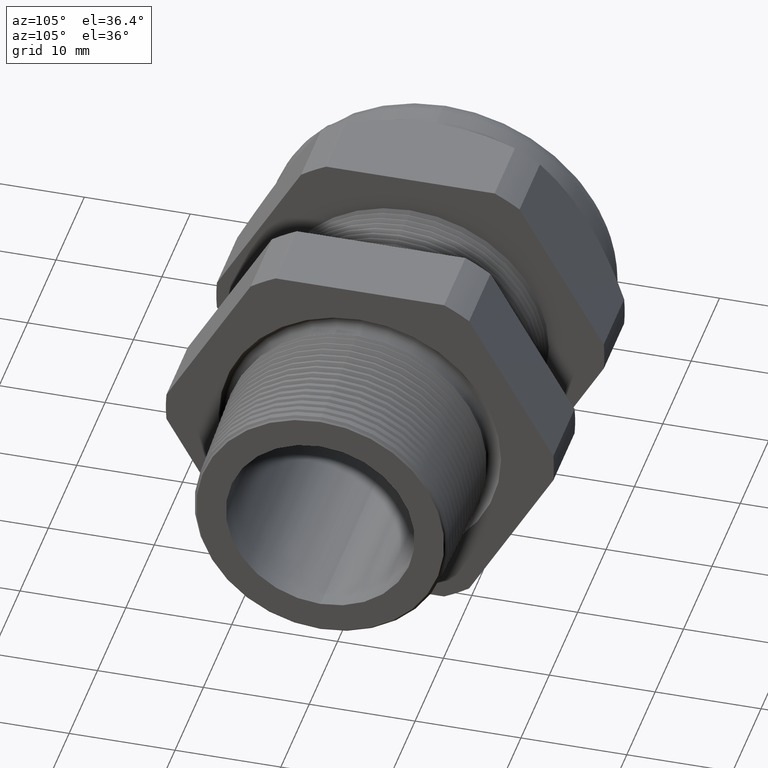
[diagram: clean part render]
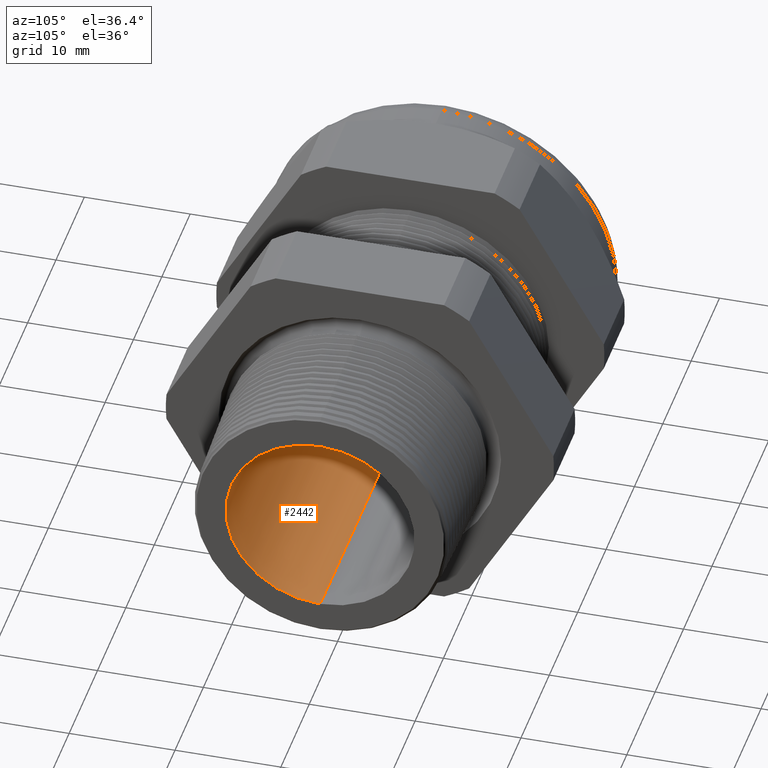
[diagram: same view with one face highlighted and labeled with its STEP entity id]
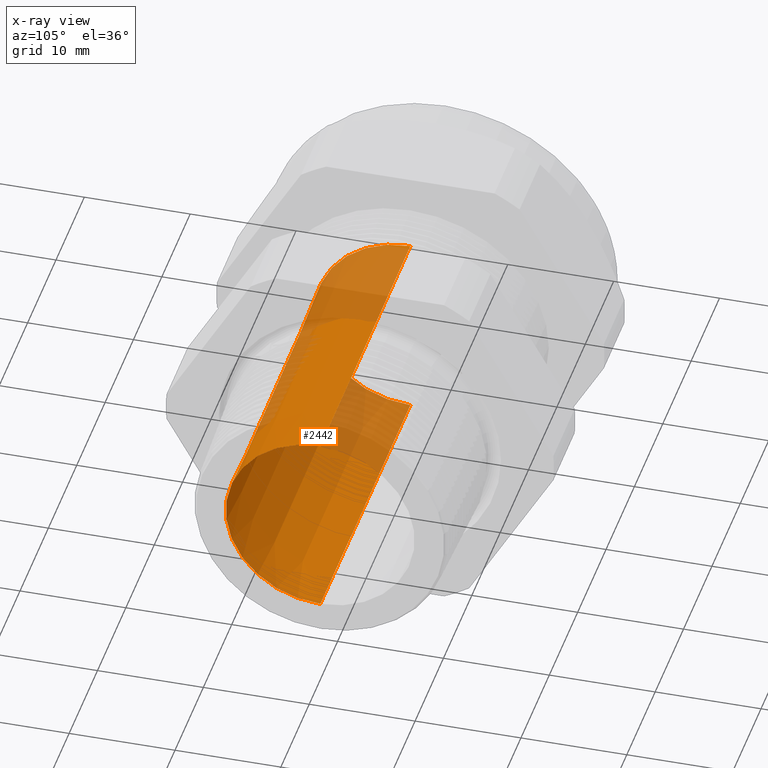
[diagram: x-ray of the same camera — body ghosted, the highlighted face saturated]
A machine part, auxiliary view. The second image highlights one B-rep face of the part: STEP entity #2442.
The next image is the same camera in x-ray: the body ghosted, the highlighted face saturated — about 31% of this face is hidden behind the body in this view.
In plain terms, the highlighted conical surface has half-angle 0.168 deg.
Its self-contained STEP definition (entity closure, byte-faithful):
#2029 = VERTEX_POINT ( 'NONE', #4528 ) ;
#2030 = ORIENTED_EDGE ( 'NONE', *, *, #2032, .F. ) ;
#2032 = EDGE_CURVE ( 'NONE', #2431, #2029, #4525, .T. ) ;
#2033 = ORIENTED_EDGE ( 'NONE', *, *, #2036, .F. ) ;
#2036 = EDGE_CURVE ( 'NONE', #2029, #2386, #4576, .T. ) ;
#2386 = VERTEX_POINT ( 'NONE', #5233 ) ;
#2391 = ORIENTED_EDGE ( 'NONE', *, *, #2413, .T. ) ;
#2392 = VERTEX_POINT ( 'NONE', #5225 ) ;
#2413 = EDGE_CURVE ( 'NONE', #2392, #2386, #5275, .T. ) ;
#2431 = VERTEX_POINT ( 'NONE', #5299 ) ;
#2435 = EDGE_LOOP ( 'NONE', ( #2439, #2391, #2033, #2030 ) ) ;
#2438 = EDGE_CURVE ( 'NONE', #2431, #2392, #5346, .T. ) ;
#2439 = ORIENTED_EDGE ( 'NONE', *, *, #2438, .T. ) ;
#2442 = ADVANCED_FACE ( 'NONE', ( #5341 ), #5340, .F. ) ;
#4525 = LINE ( 'NONE', #4580, #4579 ) ;
#4528 = CARTESIAN_POINT ( 'NONE',  ( -1.010314960629921100, 4.347496136973103500E-017, 0.3549999999999999800 ) ) ;
#4572 = DIRECTION ( 'NONE',  ( 0.0000000000000000000, 0.0000000000000000000, -1.000000000000000000 ) ) ;
#4573 = DIRECTION ( 'NONE',  ( 1.000000000000000000, 0.0000000000000000000, 0.0000000000000000000 ) ) ;
#4574 = CARTESIAN_POINT ( 'NONE',  ( -1.010314960629921100, 0.0000000000000000000, 0.0000000000000000000 ) ) ;
#4575 = AXIS2_PLACEMENT_3D ( 'NONE', #4574, #4573, #4572 ) ;
#4576 = CIRCLE ( 'NONE', #4575, 0.3549999999999999800 ) ;
#4578 = DIRECTION ( 'NONE',  ( -0.9999957110036829000, 0.0000000000000000000, 0.002928817891015055800 ) ) ;
#4579 = VECTOR ( 'NONE', #4578, 39.37007874015748100 ) ;
#4580 = CARTESIAN_POINT ( 'NONE',  ( -1.010314960629921100, 0.0000000000000000000, 0.3549999999999999800 ) ) ;
#5225 = CARTESIAN_POINT ( 'NONE',  ( 0.2400000000000001000, 4.325073095751094600E-017, -0.3513380394677680400 ) ) ;
#5233 = CARTESIAN_POINT ( 'NONE',  ( -1.010314960629921100, 0.0000000000000000000, -0.3549999999999999800 ) ) ;
#5272 = DIRECTION ( 'NONE',  ( -0.9999957110036829000, 3.586767455517089800E-019, -0.002928817891015055800 ) ) ;
#5273 = VECTOR ( 'NONE', #5272, 39.37007874015748100 ) ;
#5274 = CARTESIAN_POINT ( 'NONE',  ( -1.010314960629921100, 4.347496136973103500E-017, -0.3549999999999999800 ) ) ;
#5275 = LINE ( 'NONE', #5274, #5273 ) ;
#5299 = CARTESIAN_POINT ( 'NONE',  ( 0.2400000000000001000, 0.0000000000000000000, 0.3513380394677680400 ) ) ;
#5335 = DIRECTION ( 'NONE',  ( 0.0000000000000000000, 0.0000000000000000000, 1.000000000000000000 ) ) ;
#5336 = DIRECTION ( 'NONE',  ( -1.000000000000000000, 0.0000000000000000000, 0.0000000000000000000 ) ) ;
#5337 = CARTESIAN_POINT ( 'NONE',  ( -1.010314960629921100, 0.0000000000000000000, 0.0000000000000000000 ) ) ;
#5338 = AXIS2_PLACEMENT_3D ( 'NONE', #5337, #5336, #5335 ) ;
#5340 = CONICAL_SURFACE ( 'NONE', #5338, 0.3549999999999999800, 0.002928822078251955500 ) ;
#5341 = FACE_OUTER_BOUND ( 'NONE', #2435, .T. ) ;
#5342 = DIRECTION ( 'NONE',  ( 0.0000000000000000000, 0.0000000000000000000, -1.000000000000000000 ) ) ;
#5343 = DIRECTION ( 'NONE',  ( 1.000000000000000000, 0.0000000000000000000, 0.0000000000000000000 ) ) ;
#5344 = CARTESIAN_POINT ( 'NONE',  ( 0.2400000000000001000, 0.0000000000000000000, 0.0000000000000000000 ) ) ;
#5345 = AXIS2_PLACEMENT_3D ( 'NONE', #5344, #5343, #5342 ) ;
#5346 = CIRCLE ( 'NONE', #5345, 0.3513380394677680400 ) ;